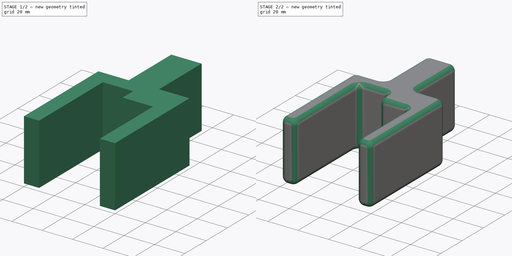
[diagram: build sequence overview — one tinted view per stage of 2, left to right]
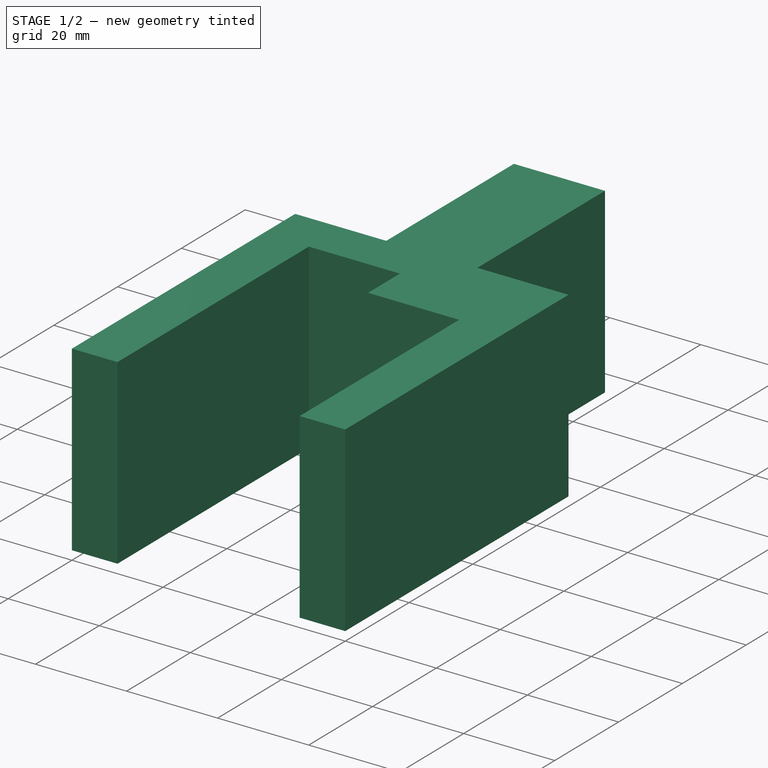
[diagram: stage 1 of 2 — iso view after this stage's code; geometry added in this stage tinted green]
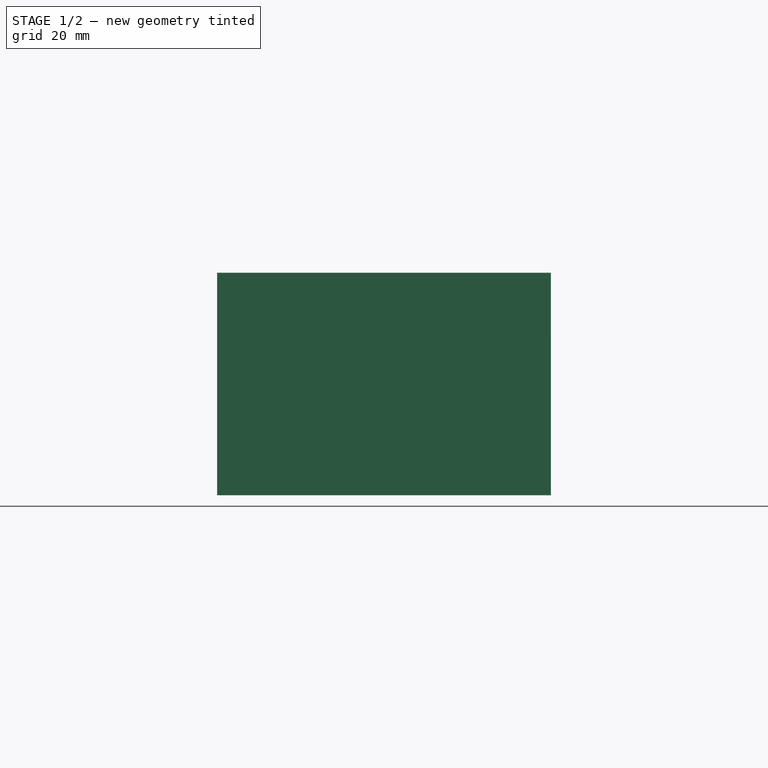
[diagram: stage 1 of 2 — front view after this stage's code; geometry added in this stage tinted green]
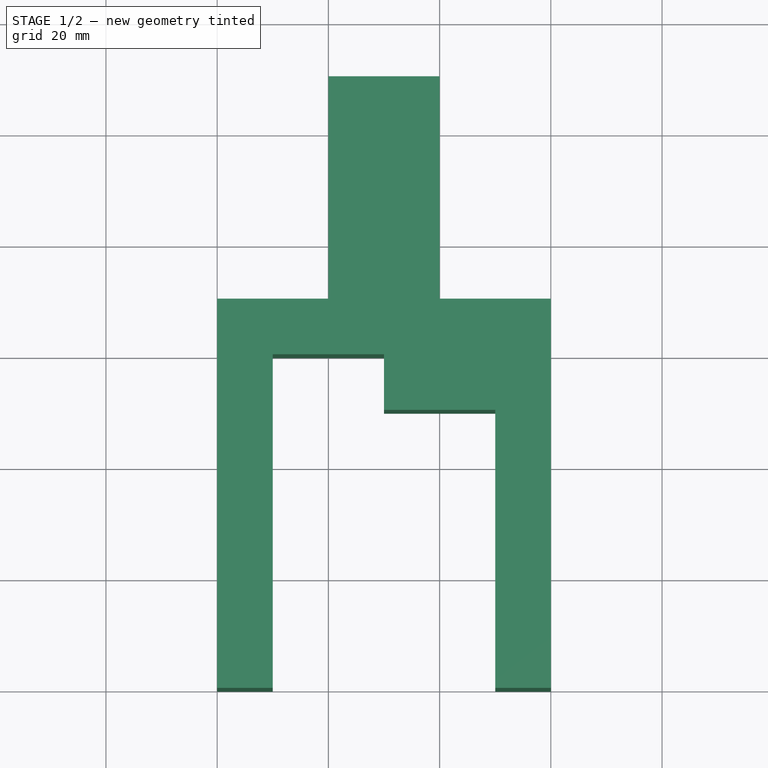
[diagram: stage 1 of 2 — top view after this stage's code; geometry added in this stage tinted green]
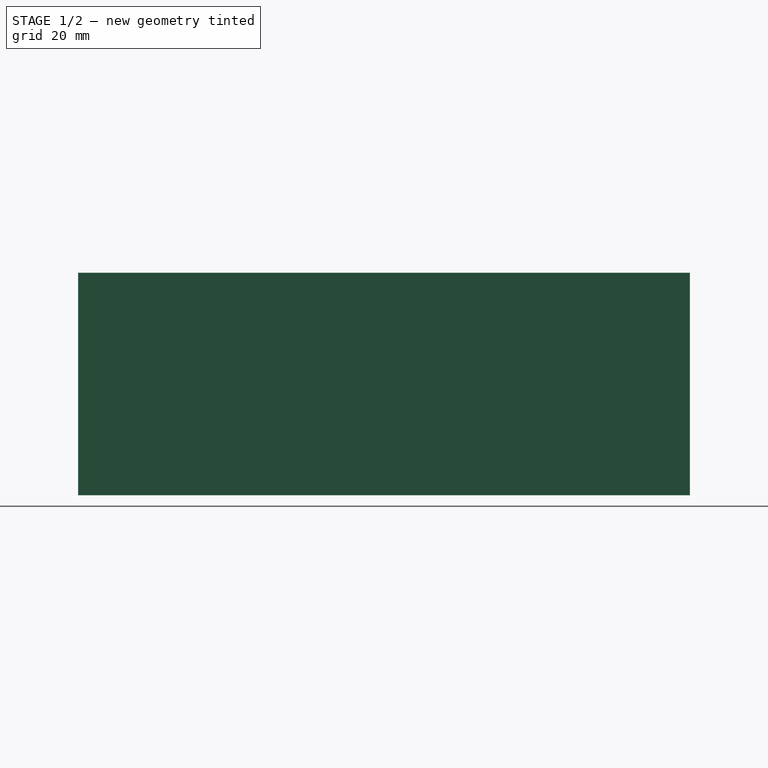
[diagram: stage 1 of 2 — right view after this stage's code; geometry added in this stage tinted green]
FCSTD DOCUMENT  (FreeCAD 1.1R20260325 (Git shallow))
Label: BedFanBracket
License: All rights reserved
LicenseURL: https://en.wikipedia.org/wiki/All_rights_reserved
objects: App::Point×1, Sketcher::SketchObject×1, PartDesign::Pad×1, PartDesign::Fillet×1, PartDesign::Body×1
note: 9 computed .brp shape members not serialized (recipe doc carries the construction recipe); baked Part::Feature solids carry a one-line shape summary decoded from their .brp

FEATURE [App::Point] Origin001
  Role = Origin
FEATURE [Sketcher::SketchObject] Sketch
  ArcFitTolerance = 1e-06
  AttachmentSupport = -> [Origin]
  ExternalTypes = [0]
  FullyConstrained = true
  MakeInternals = false
  MapMode = 5
  _ExternalGeoVersion = 1
  sketch-geometry (14):
    g0: LineSegment StartX=0 StartY=0 StartZ=0 EndX=0 EndY=70 EndZ=0
    g1: LineSegment StartX=0 StartY=70 StartZ=0 EndX=20 EndY=70 EndZ=0
    g2: LineSegment StartX=20 StartY=70 StartZ=0 EndX=20 EndY=110 EndZ=0
    g3: LineSegment StartX=20 StartY=110 StartZ=0 EndX=40 EndY=110 EndZ=0
    g4: LineSegment StartX=40 StartY=110 StartZ=0 EndX=40 EndY=70 EndZ=0
    g5: LineSegment StartX=40 StartY=70 StartZ=0 EndX=60 EndY=70 EndZ=0
    g6: LineSegment StartX=60 StartY=70 StartZ=0 EndX=60 EndY=0 EndZ=0
    g7: LineSegment StartX=60 StartY=0 StartZ=0 EndX=50 EndY=0 EndZ=0
    g8: LineSegment StartX=50 StartY=0 StartZ=0 EndX=50 EndY=50 EndZ=0
    g9: LineSegment StartX=50 StartY=50 StartZ=0 EndX=30 EndY=50 EndZ=0
    g10: LineSegment StartX=30 StartY=50 StartZ=0 EndX=30 EndY=60 EndZ=0
    g11: LineSegment StartX=30 StartY=60 StartZ=0 EndX=10 EndY=60 EndZ=0
    g12: LineSegment StartX=10 StartY=60 StartZ=0 EndX=10 EndY=0 EndZ=0
    g13: LineSegment StartX=10 StartY=0 StartZ=0 EndX=0 EndY=0 EndZ=0
  constraints (41):
    c: Coincident(g-1,g0)
    c: PointOnObject(g0,g-2)
    c: Coincident(g0,g1)
    c: Horizontal(g1)
    c: Coincident(g1,g2)
    c: Vertical(g2)
    c: Coincident(g2,g3)
    c: Horizontal(g3)
    c: Coincident(g3,g4)
    c: Vertical(g4)
    c: Coincident(g4,g5)
    c: Horizontal(g5)
    c: Coincident(g5,g6)
    c: PointOnObject(g6,g-1)
    c: Vertical(g6)
    c: Coincident(g6,g7)
    c: PointOnObject(g7,g-1)
    c: Coincident(g7,g8)
    c: Vertical(g8)
    c: Coincident(g8,g9)
    c: Horizontal(g9)
    c: Coincident(g9,g10)
    c: Vertical(g10)
    c: Coincident(g10,g11)
    c: Horizontal(g11)
    c: Coincident(g11,g12)
    c: PointOnObject(g12,g-1)
    c: Vertical(g12)
    c: Coincident(g12,g13)
    c: Coincident(g13,g0)
    c: Distance(g8,g12) = 40
    c: Distance(g12,g0) = 10
    c: Distance(g8,g6) = 10
    c: Distance(g5,g9) = 20
    c: Distance(g10,g10) = 10
    c: Distance(g3,g3) = 20
    c: Distance(g11,g11) = 20
    c: Distance(g1,g11) = 10
    c: Distance(g1,g1) = 20
    c: Distance(g4,g4) = 40
    c: Distance(g8,g8) = 50
FEATURE [PartDesign::Pad] Pad
  Direction = (0,0,1)
  Length = 40
  Length2 = 10
  Profile = -> Sketch
  ReferenceAxis = -> Sketch [N_Axis]
  Refine = true
  SideType = 0
  Suppressed = false
  Type = 0
  Type2 = 0
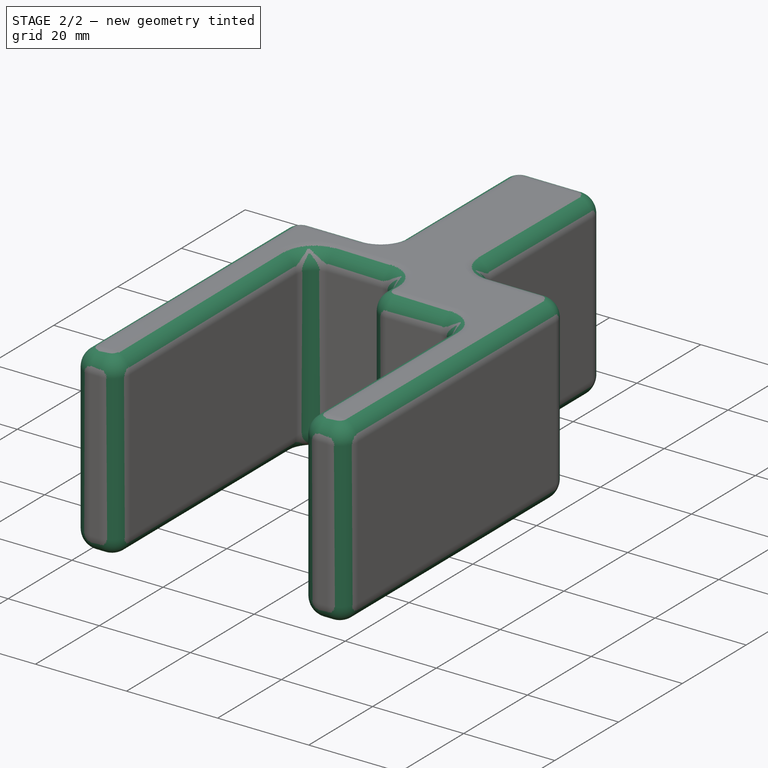
[diagram: stage 2 of 2 — iso view after this stage's code; geometry added in this stage tinted green]
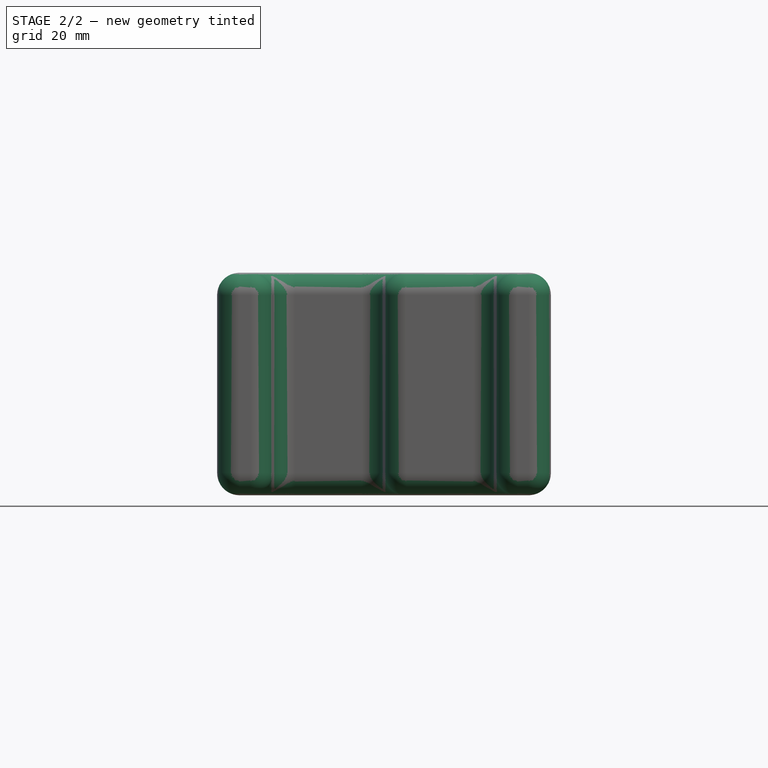
[diagram: stage 2 of 2 — front view after this stage's code; geometry added in this stage tinted green]
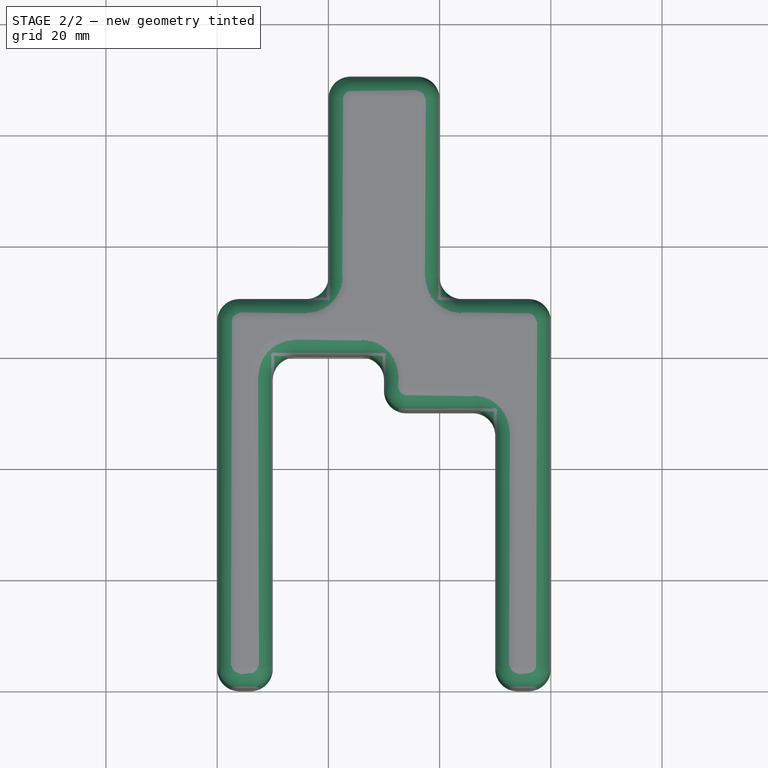
[diagram: stage 2 of 2 — top view after this stage's code; geometry added in this stage tinted green]
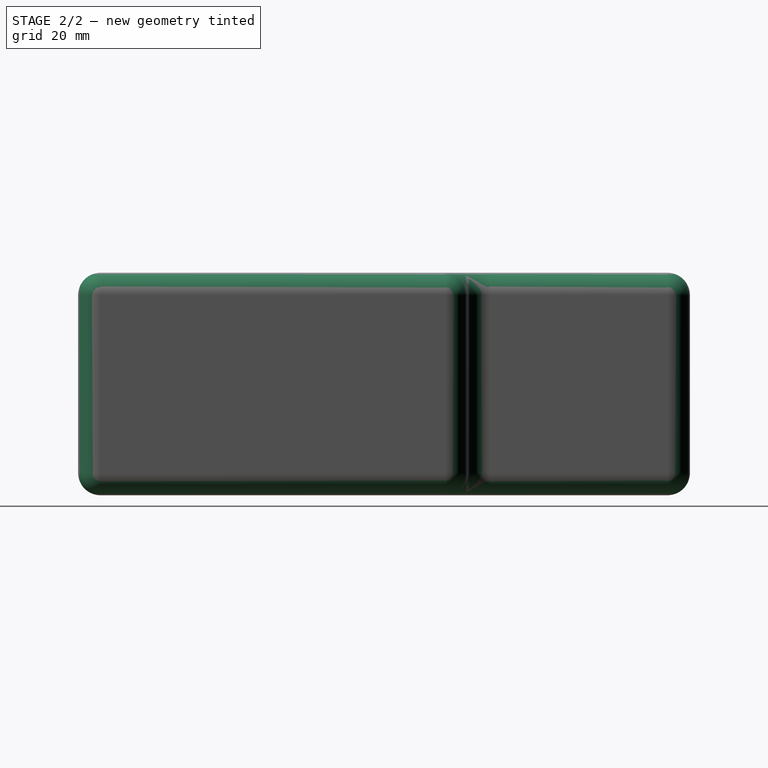
[diagram: stage 2 of 2 — right view after this stage's code; geometry added in this stage tinted green]
FEATURE [PartDesign::Fillet] Fillet
  Base = -> Pad [Edge1,Edge2,Edge3,Edge4,Edge5,Edge6,Edge7,Edge8,Edge9,Edge10,Edge11,Edge12,Edge13,Edge14,Edge15,Edge16,Edge17,Edge18,Edge19,Edge20,Edge21,Edge22,Edge23,Edge24,Edge25,Edge26,Edge27,Edge28,Edge29,Edge30,Edge31,Edge32,Edge33,Edge34,Edge35,Edge36,Edge37,Edge38,Edge39,Edge40,+2 more]
  BaseFeature = -> Pad
  Radius = 4
  Refine = true
  SupportTransform = false
  Suppressed = false
  UseAllEdges = true
FEATURE [PartDesign::Body] Body
  AllowCompound = true
  Group = -> [Sketch,Pad,Fillet]
  Origin = -> Origin
  Tip = -> Fillet
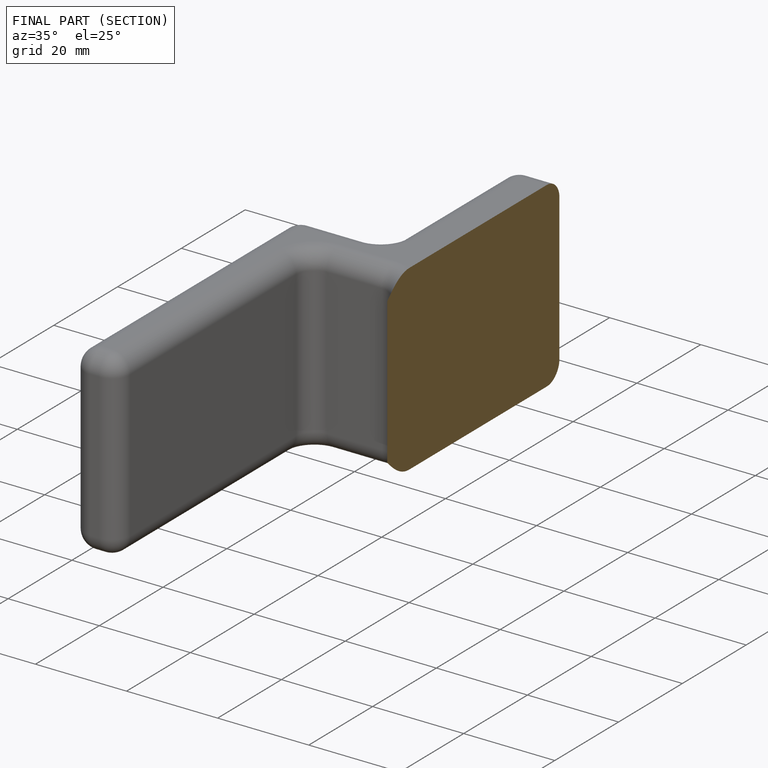
[diagram: finished part — half-section view (interior)]
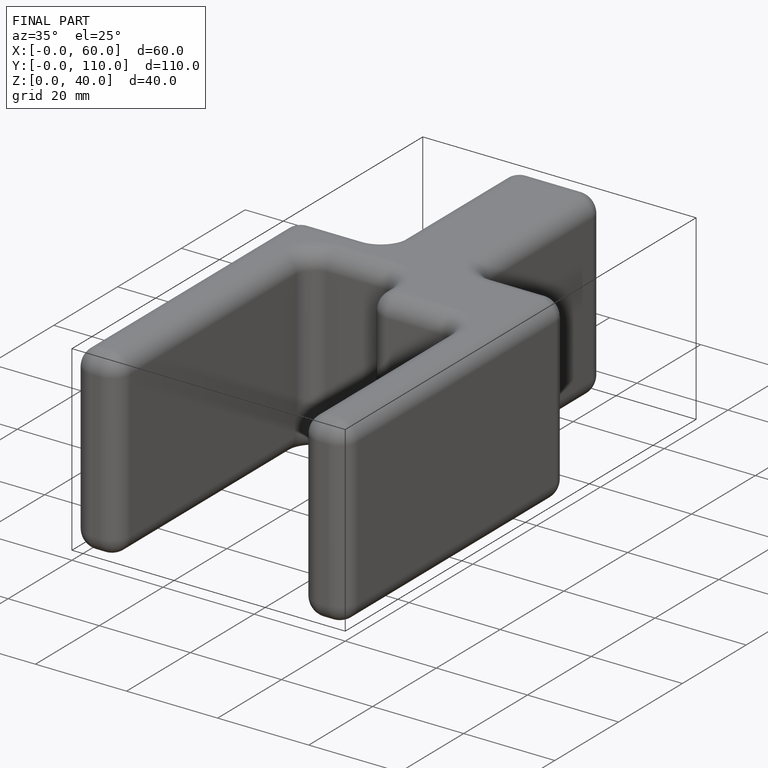
[diagram: finished part — iso view with bounding-box wireframe]
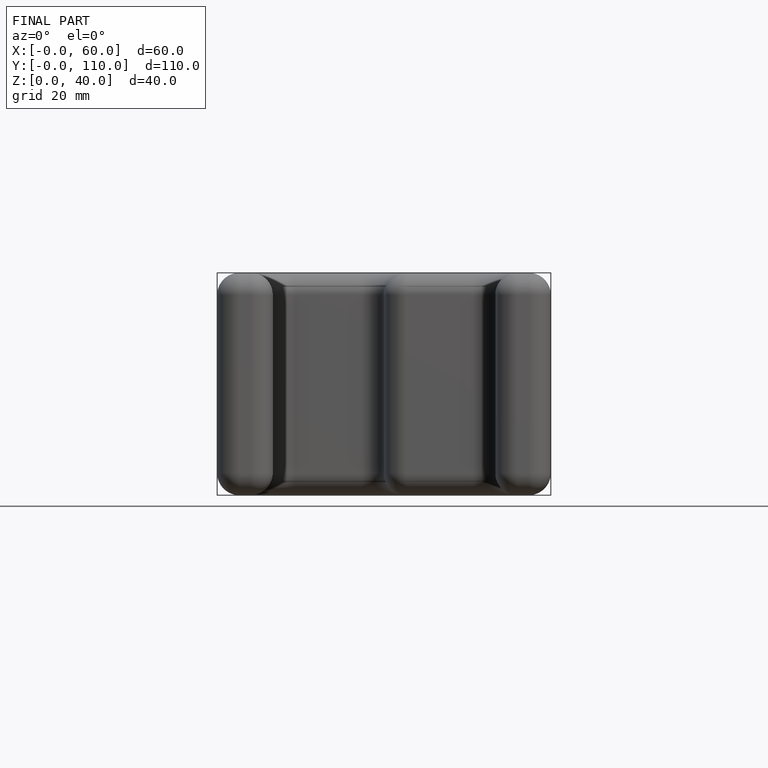
[diagram: finished part — front view with bounding-box wireframe]
